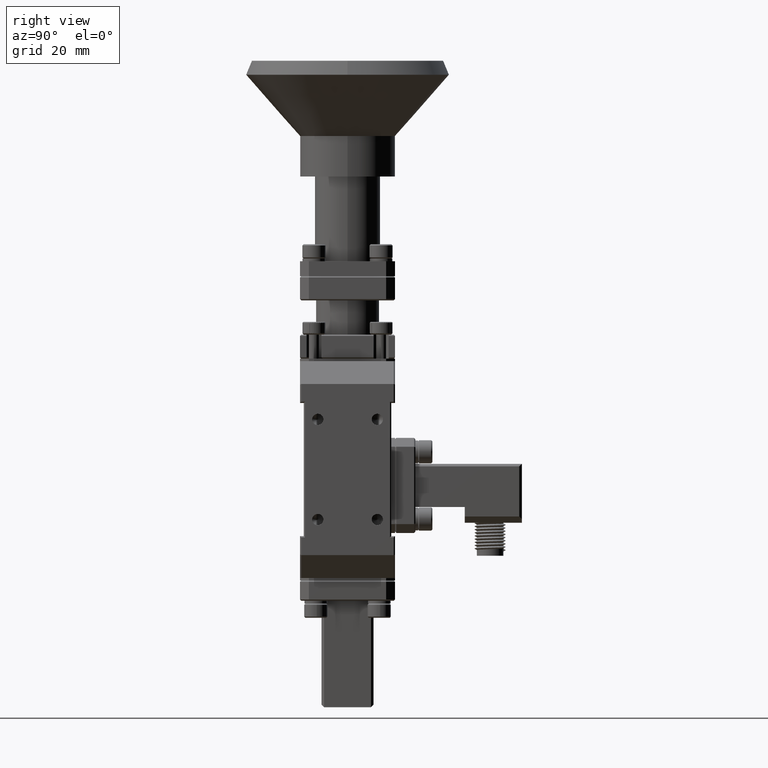
[diagram: clean part render]
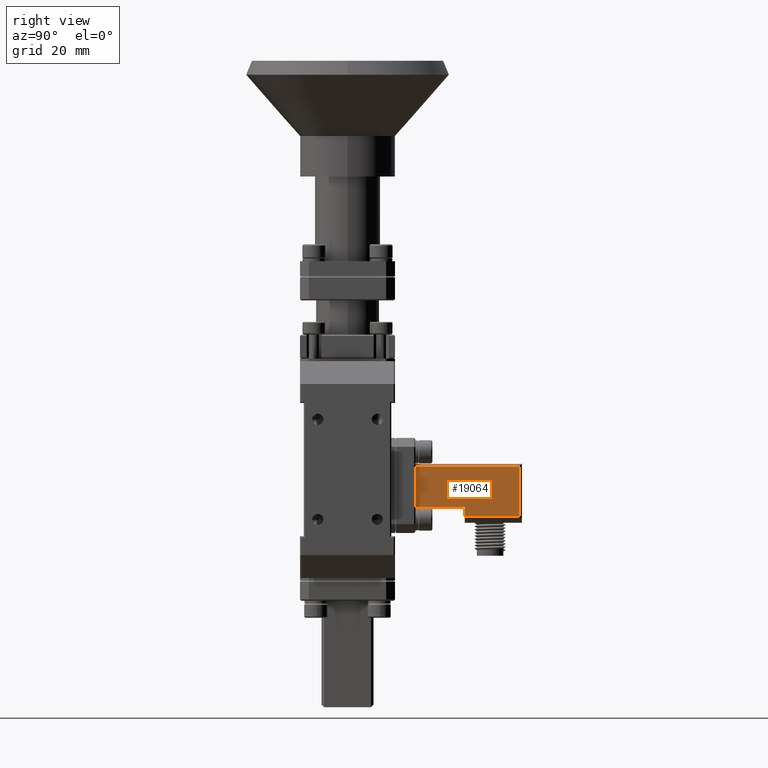
[diagram: same view with one face highlighted and labeled with its STEP entity id]
A machine part, right view. The second image highlights one B-rep face of the part: STEP entity #19064.
In plain terms, the highlighted planar face has unit normal (-1, 0, -0).
Its self-contained STEP definition (entity closure, byte-faithful):
#680 = ORIENTED_EDGE ( 'NONE', *, *, #14464, .T. ) ;
#740 = VECTOR ( 'NONE', #50086, 39.37007874015748143 ) ;
#864 = CARTESIAN_POINT ( 'NONE',  ( 0.2049999999999999878, 0.9250000000000004885, -3.594999999996317808 ) ) ;
#944 = CARTESIAN_POINT ( 'NONE',  ( 0.2049999999999994604, 1.375000000000000444, -2.974999999996317701 ) ) ;
#1521 = VERTEX_POINT ( 'NONE', #1817 ) ;
#1817 = CARTESIAN_POINT ( 'NONE',  ( 0.2049999999999997935, 0.5350000000000004752, -3.519999999996318074 ) ) ;
#1929 = EDGE_LOOP ( 'NONE', ( #36300, #42918, #10382, #680, #10276, #51408 ) ) ;
#3037 = VERTEX_POINT ( 'NONE', #20220 ) ;
#3052 = EDGE_CURVE ( 'NONE', #50051, #3037, #29115, .T. ) ;
#3700 = EDGE_CURVE ( 'NONE', #48737, #1521, #7574, .T. ) ;
#4874 = CARTESIAN_POINT ( 'NONE',  ( 0.2050000000000001266, 1.375000000000000444, -3.594999999996317808 ) ) ;
#5602 = CARTESIAN_POINT ( 'NONE',  ( 0.2050000000000001266, 1.355000000000000426, -3.594999999996317808 ) ) ;
#7574 = LINE ( 'NONE', #12637, #25150 ) ;
#9047 = VECTOR ( 'NONE', #44630, 39.37007874015748143 ) ;
#9960 = DIRECTION ( 'NONE',  ( 3.048937492928866062E-16, 1.000000000000000000, 1.734723475976940754E-18 ) ) ;
#10128 = LINE ( 'NONE', #29500, #50404 ) ;
#10276 = ORIENTED_EDGE ( 'NONE', *, *, #37503, .T. ) ;
#10382 = ORIENTED_EDGE ( 'NONE', *, *, #3052, .T. ) ;
#12637 = CARTESIAN_POINT ( 'NONE',  ( 0.2049999999999997935, 0.5350000000000005862, -3.519999999996318074 ) ) ;
#14464 = EDGE_CURVE ( 'NONE', #3037, #33708, #10128, .T. ) ;
#14609 = FACE_OUTER_BOUND ( 'NONE', #1929, .T. ) ;
#14747 = VERTEX_POINT ( 'NONE', #864 ) ;
#18730 = CARTESIAN_POINT ( 'NONE',  ( 0.2049999999999994604, 0.5350000000000004752, -3.199999999996317790 ) ) ;
#19064 = ADVANCED_FACE ( 'NONE', ( #14609 ), #39368, .F. ) ;
#20021 = LINE ( 'NONE', #34922, #60509 ) ;
#20141 = CARTESIAN_POINT ( 'NONE',  ( 0.2049999999999999045, 0.9250000000000005995, -3.519999999996318074 ) ) ;
#20220 = CARTESIAN_POINT ( 'NONE',  ( 0.2049999999999996825, 1.355000000000000426, -3.199999999996317790 ) ) ;
#21692 = EDGE_CURVE ( 'NONE', #14747, #48737, #20021, .T. ) ;
#25150 = VECTOR ( 'NONE', #32940, 39.37007874015748143 ) ;
#25289 = CARTESIAN_POINT ( 'NONE',  ( 0.2049999999999996825, 1.355000000000000426, -3.179999999996317772 ) ) ;
#26896 = EDGE_CURVE ( 'NONE', #14747, #50051, #54122, .T. ) ;
#29115 = LINE ( 'NONE', #25289, #9047 ) ;
#29500 = CARTESIAN_POINT ( 'NONE',  ( 0.2049999999999996825, 1.375000000000000444, -3.199999999996317790 ) ) ;
#32940 = DIRECTION ( 'NONE',  ( -3.048937492928866062E-16, -1.000000000000000000, -1.734723475976940754E-18 ) ) ;
#33708 = VERTEX_POINT ( 'NONE', #18730 ) ;
#34919 = DIRECTION ( 'NONE',  ( 3.048937492928866062E-16, 1.000000000000000000, 1.734723475976940754E-18 ) ) ;
#34922 = CARTESIAN_POINT ( 'NONE',  ( 0.2049999999999999045, 0.9250000000000005995, -3.519999999996318074 ) ) ;
#35788 = LINE ( 'NONE', #54571, #740 ) ;
#36300 = ORIENTED_EDGE ( 'NONE', *, *, #21692, .F. ) ;
#37503 = EDGE_CURVE ( 'NONE', #33708, #1521, #35788, .T. ) ;
#37528 = VECTOR ( 'NONE', #9960, 39.37007874015748143 ) ;
#39368 = PLANE ( 'NONE',  #60380 ) ;
#42918 = ORIENTED_EDGE ( 'NONE', *, *, #26896, .T. ) ;
#44630 = DIRECTION ( 'NONE',  ( -1.111957748101133150E-15, -1.734723475976609494E-18, 1.000000000000000000 ) ) ;
#48737 = VERTEX_POINT ( 'NONE', #20141 ) ;
#48871 = DIRECTION ( 'NONE',  ( -3.048937492928867541E-16, -1.000000000000000000, 1.202227762411777023E-16 ) ) ;
#50051 = VERTEX_POINT ( 'NONE', #5602 ) ;
#50086 = DIRECTION ( 'NONE',  ( 1.111957748101133150E-15, 1.734723475976609494E-18, -1.000000000000000000 ) ) ;
#50404 = VECTOR ( 'NONE', #48871, 39.37007874015748143 ) ;
#51408 = ORIENTED_EDGE ( 'NONE', *, *, #3700, .F. ) ;
#53723 = DIRECTION ( 'NONE',  ( -1.111957748101132953E-15, 5.446348752568766255E-16, 1.000000000000000000 ) ) ;
#54122 = LINE ( 'NONE', #4874, #37528 ) ;
#54571 = CARTESIAN_POINT ( 'NONE',  ( 0.2049999999999992106, 0.5350000000000004752, -2.974999999996317701 ) ) ;
#60380 = AXIS2_PLACEMENT_3D ( 'NONE', #944, #62644, #34919 ) ;
#60509 = VECTOR ( 'NONE', #53723, 39.37007874015748143 ) ;
#62644 = DIRECTION ( 'NONE',  ( -1.000000000000000000, 3.048937492928866062E-16, -1.111957748101133150E-15 ) ) ;